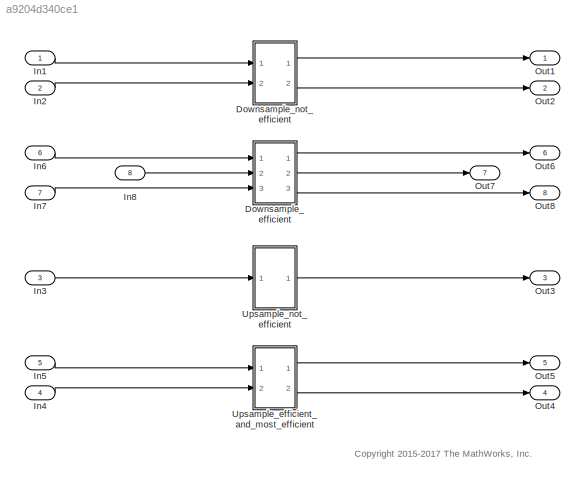
MODEL slx_a9204d340ce1
KIND model
CONFIG AbsTol = auto
CONFIG EnableMultiTasking = off
CONFIG FixedStep = auto
CONFIG MaxStep = auto
CONFIG MinStep = auto
CONFIG RelTol = 1e-3
CONFIG SampleTimeConstraint = Unconstrained
CONFIG Solver = FixedStepDiscrete
CONFIG SolverName = FixedStepDiscrete
CONFIG StartTime = 0.0
CONFIG StopTime = 10
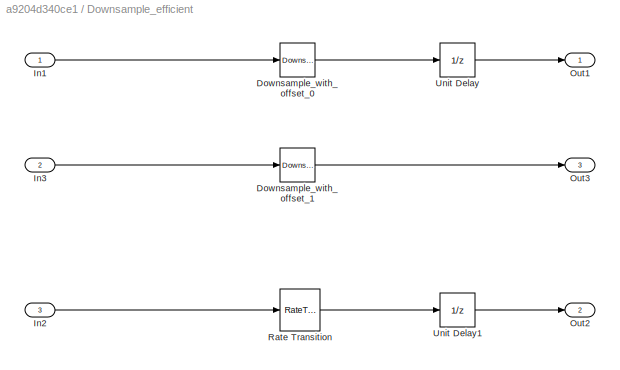
BLOCK [SubSystem] Downsample_efficient
  Ports = [3, 3]
  RequestExecContextInheritance = off
BLOCK [Reference] Downsample_efficient/Downsample_with_offset_0  REF=dspsigops/Downsample
  AttributesFormatString = %<Description>
  Description = efficient usage of downsample
  Ports = [1, 1]
  SourceBlock = dspsigops/Downsample
  SourceProductBaseCode = DS
  SourceProductName = DSP System Toolbox
  SourceType = Downsample
  UserDataPersistent = on
BLOCK [Reference] Downsample_efficient/Downsample_with_offset_1  REF=dspsigops/Downsample
  AttributesFormatString = %<Description>
  Description = efficient usage of downsample                                    \noffset is equal to K-1 eliminates the need for the extra register
  Ports = [1, 1]
  SourceBlock = dspsigops/Downsample
  SourceProductBaseCode = DS
  SourceProductName = DSP System Toolbox
  SourceType = Downsample
  UserDataPersistent = on
BLOCK [Inport] Downsample_efficient/In1
  IconDisplay = Port number
BLOCK [Inport] Downsample_efficient/In2
  IconDisplay = Port number
  Port = 3
BLOCK [Inport] Downsample_efficient/In3
  IconDisplay = Port number
  Port = 2
BLOCK [Outport] Downsample_efficient/Out1
  IconDisplay = Port number
BLOCK [Outport] Downsample_efficient/Out2
  IconDisplay = Port number
  Port = 2
BLOCK [Outport] Downsample_efficient/Out3
  IconDisplay = Port number
  Port = 3
BLOCK [RateTransition] Downsample_efficient/Rate Transition
  AttributesFormatString = %<Description>
  Description = efficient usage of rate transition\nsimilar to downsample
  OutPortSampleTimeMultiple = 2
  OutPortSampleTimeOpt = Multiple of input port sample time
BLOCK [UnitDelay] Downsample_efficient/Unit Delay
  HasFrameUpgradeWarning = on
  SampleTime = -1
BLOCK [UnitDelay] Downsample_efficient/Unit Delay1
  HasFrameUpgradeWarning = on
  SampleTime = -1
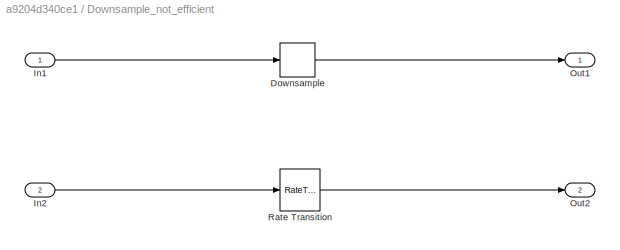
BLOCK [SubSystem] Downsample_not_efficient
  Ports = [2, 2]
  RequestExecContextInheritance = off
BLOCK [DownSample] Downsample_not_efficient/Downsample
  AttributesFormatString = %<Description>
  Description = inefficient implementation of downsample  \nrequires bypass register and mux          \npath from input to output is combinatorial
  InputProcessing = Elements as channels (sample based)
  RateOptions = Allow multirate processing
  UserDataPersistent = on
BLOCK [Inport] Downsample_not_efficient/In1
  IconDisplay = Port number
BLOCK [Inport] Downsample_not_efficient/In2
  IconDisplay = Port number
  Port = 2
BLOCK [Outport] Downsample_not_efficient/Out1
  IconDisplay = Port number
BLOCK [Outport] Downsample_not_efficient/Out2
  IconDisplay = Port number
  Port = 2
BLOCK [RateTransition] Downsample_not_efficient/Rate Transition
  AttributesFormatString = %<Description>
  Description = inefficient implementation of downsample  \nrequires bypass register and mux          \npath from input to output is combinatorial
  OutPortSampleTimeMultiple = 2
  OutPortSampleTimeOpt = Multiple of input port sample time
BLOCK [Inport] In1
  IconDisplay = Port number
  OutDataTypeStr = fixdt(1,16,14)
  SampleTime = 1
BLOCK [Inport] In2
  IconDisplay = Port number
  OutDataTypeStr = fixdt(1,16,14)
  Port = 2
  SampleTime = 1
BLOCK [Inport] In3
  IconDisplay = Port number
  OutDataTypeStr = fixdt(1,16,14)
  Port = 3
  SampleTime = 1
BLOCK [Inport] In4
  IconDisplay = Port number
  OutDataTypeStr = fixdt(1,16,14)
  Port = 4
  SampleTime = 1
BLOCK [Inport] In5
  IconDisplay = Port number
  OutDataTypeStr = fixdt(1,16,14)
  Port = 5
  SampleTime = 1
BLOCK [Inport] In6
  IconDisplay = Port number
  OutDataTypeStr = fixdt(1,16,14)
  Port = 6
  SampleTime = 1
BLOCK [Inport] In7
  IconDisplay = Port number
  OutDataTypeStr = fixdt(1,16,14)
  Port = 7
  SampleTime = 1
BLOCK [Inport] In8
  IconDisplay = Port number
  OutDataTypeStr = fixdt(1,16,14)
  Port = 8
  SampleTime = 1
BLOCK [Outport] Out1
  IconDisplay = Port number
BLOCK [Outport] Out2
  IconDisplay = Port number
  Port = 2
BLOCK [Outport] Out3
  IconDisplay = Port number
  Port = 3
BLOCK [Outport] Out4
  IconDisplay = Port number
  Port = 4
BLOCK [Outport] Out5
  IconDisplay = Port number
  Port = 5
BLOCK [Outport] Out6
  IconDisplay = Port number
  Port = 6
BLOCK [Outport] Out7
  IconDisplay = Port number
  Port = 7
BLOCK [Outport] Out8
  IconDisplay = Port number
  Port = 8
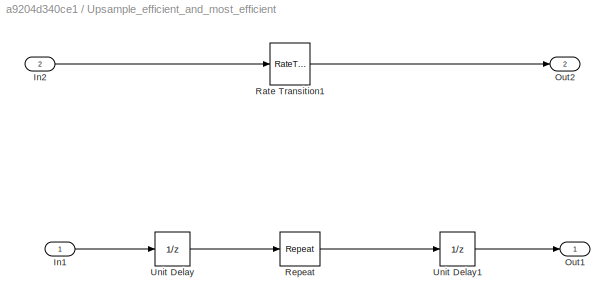
BLOCK [SubSystem] Upsample_efficient_and_most_efficient
  Ports = [2, 2]
  RequestExecContextInheritance = off
BLOCK [Inport] Upsample_efficient_and_most_efficient/In1
  IconDisplay = Port number
BLOCK [Inport] Upsample_efficient_and_most_efficient/In2
  IconDisplay = Port number
  Port = 2
BLOCK [Outport] Upsample_efficient_and_most_efficient/Out1
  IconDisplay = Port number
BLOCK [Outport] Upsample_efficient_and_most_efficient/Out2
  IconDisplay = Port number
  Port = 2
BLOCK [RateTransition] Upsample_efficient_and_most_efficient/Rate Transition1
  AttributesFormatString = %<Description>
  Description = this is an efficient upsample
BLOCK [Reference] Upsample_efficient_and_most_efficient/Repeat  REF=dspsigops/Repeat
  AttributesFormatString = %<Description>
  Description = this becomes just a wire
  Ports = [1, 1]
  SourceBlock = dspsigops/Repeat
  SourceProductBaseCode = DS
  SourceProductName = DSP System Toolbox
  SourceType = Repeat
  UserDataPersistent = on
BLOCK [UnitDelay] Upsample_efficient_and_most_efficient/Unit Delay
  HasFrameUpgradeWarning = on
  SampleTime = -1
BLOCK [UnitDelay] Upsample_efficient_and_most_efficient/Unit Delay1
  HasFrameUpgradeWarning = on
  SampleTime = -1
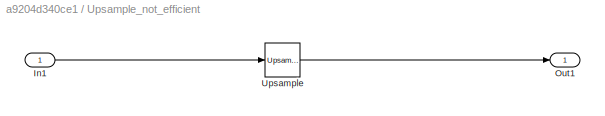
BLOCK [SubSystem] Upsample_not_efficient
  Ports = [1, 1]
  RequestExecContextInheritance = off
BLOCK [Inport] Upsample_not_efficient/In1
  IconDisplay = Port number
BLOCK [Outport] Upsample_not_efficient/Out1
  IconDisplay = Port number
BLOCK [Reference] Upsample_not_efficient/Upsample  REF=dspsigops/Upsample
  Ports = [1, 1]
  SourceBlock = dspsigops/Upsample
  SourceProductBaseCode = DS
  SourceProductName = DSP System Toolbox
  SourceType = Upsample
  UserDataPersistent = on
ANNOTATION (root): <copyright redacted>
LINE Downsample_efficient/Downsample_with_offset_0:1 -> Downsample_efficient/Unit Delay:1
LINE Downsample_efficient/Downsample_with_offset_1:1 -> Downsample_efficient/Out3:1
LINE Downsample_efficient/In1:1 -> Downsample_efficient/Downsample_with_offset_0:1
LINE Downsample_efficient/In2:1 -> Downsample_efficient/Rate Transition:1
LINE Downsample_efficient/In3:1 -> Downsample_efficient/Downsample_with_offset_1:1
LINE Downsample_efficient/Rate Transition:1 -> Downsample_efficient/Unit Delay1:1
LINE Downsample_efficient/Unit Delay1:1 -> Downsample_efficient/Out2:1
LINE Downsample_efficient/Unit Delay:1 -> Downsample_efficient/Out1:1
LINE Downsample_efficient:1 -> Out6:1
LINE Downsample_efficient:2 -> Out7:1
LINE Downsample_efficient:3 -> Out8:1
LINE Downsample_not_efficient/Downsample:1 -> Downsample_not_efficient/Out1:1
LINE Downsample_not_efficient/In1:1 -> Downsample_not_efficient/Downsample:1
LINE Downsample_not_efficient/In2:1 -> Downsample_not_efficient/Rate Transition:1
LINE Downsample_not_efficient/Rate Transition:1 -> Downsample_not_efficient/Out2:1
LINE Downsample_not_efficient:1 -> Out1:1
LINE Downsample_not_efficient:2 -> Out2:1
LINE In1:1 -> Downsample_not_efficient:1
LINE In2:1 -> Downsample_not_efficient:2
LINE In3:1 -> Upsample_not_efficient:1
LINE In4:1 -> Upsample_efficient_and_most_efficient:2
LINE In5:1 -> Upsample_efficient_and_most_efficient:1
LINE In6:1 -> Downsample_efficient:1
LINE In7:1 -> Downsample_efficient:3
LINE In8:1 -> Downsample_efficient:2
LINE Upsample_efficient_and_most_efficient/In1:1 -> Upsample_efficient_and_most_efficient/Unit Delay:1
LINE Upsample_efficient_and_most_efficient/In2:1 -> Upsample_efficient_and_most_efficient/Rate Transition1:1
LINE Upsample_efficient_and_most_efficient/Rate Transition1:1 -> Upsample_efficient_and_most_efficient/Out2:1
LINE Upsample_efficient_and_most_efficient/Repeat:1 -> Upsample_efficient_and_most_efficient/Unit Delay1:1
LINE Upsample_efficient_and_most_efficient/Unit Delay1:1 -> Upsample_efficient_and_most_efficient/Out1:1
LINE Upsample_efficient_and_most_efficient/Unit Delay:1 -> Upsample_efficient_and_most_efficient/Repeat:1
LINE Upsample_efficient_and_most_efficient:1 -> Out5:1
LINE Upsample_efficient_and_most_efficient:2 -> Out4:1
LINE Upsample_not_efficient/In1:1 -> Upsample_not_efficient/Upsample:1
LINE Upsample_not_efficient/Upsample:1 -> Upsample_not_efficient/Out1:1
LINE Upsample_not_efficient:1 -> Out3:1
